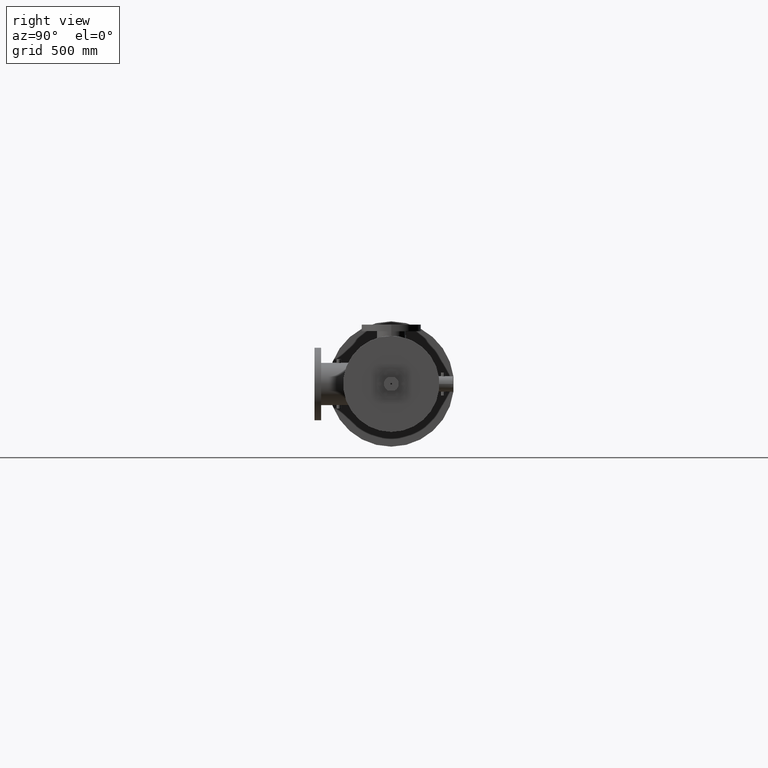
[diagram: clean part render]
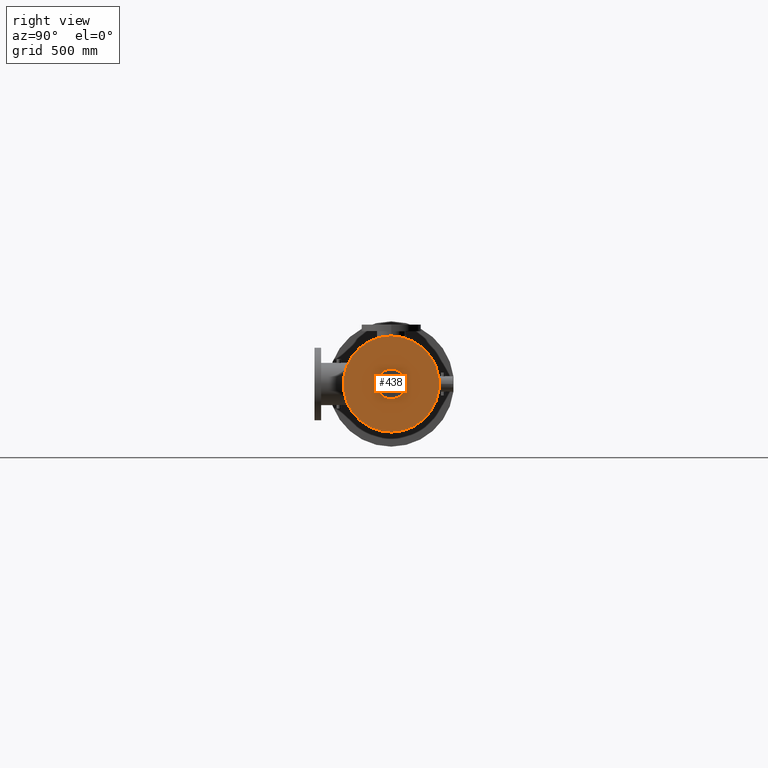
[diagram: same view with one face highlighted and labeled with its STEP entity id]
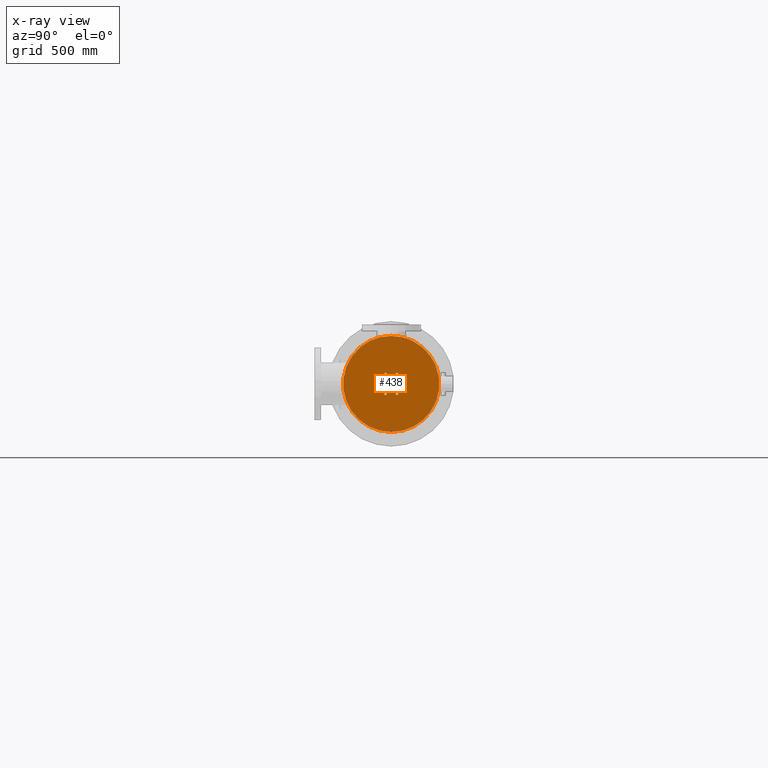
[diagram: x-ray of the same camera — body ghosted, the highlighted face saturated]
A machine part, right view. The second image highlights one B-rep face of the part: STEP entity #438.
The next image is the same camera in x-ray: the body ghosted, the highlighted face saturated — about 1% of this face is hidden behind the body in this view.
In plain terms, the highlighted planar face has unit normal (1, 0, 0).
Its self-contained STEP definition (entity closure, byte-faithful):
#47 = CIRCLE ( 'NONE', #8426, 0.1875000000000210110 ) ;
#196 = CIRCLE ( 'NONE', #9458, 0.1875000000000088540 ) ;
#438 = ADVANCED_FACE ( 'NONE', ( #16094, #16421, #24423, #13964, #19237, #510, #13050, #1415 ), #23721, .T. ) ;
#509 = DIRECTION ( 'NONE',  ( 0.0000000000000000000, 0.0000000000000000000, -1.000000000000000000 ) ) ;
#510 = FACE_BOUND ( 'NONE', #9283, .T. ) ;
#701 = DIRECTION ( 'NONE',  ( 1.000000000000000000, 0.0000000000000000000, 0.0000000000000000000 ) ) ;
#864 = EDGE_CURVE ( 'NONE', #3896, #9776, #7223, .T. ) ;
#1251 = VERTEX_POINT ( 'NONE', #3762 ) ;
#1392 = ORIENTED_EDGE ( 'NONE', *, *, #13090, .F. ) ;
#1415 = FACE_OUTER_BOUND ( 'NONE', #1689, .T. ) ;
#1689 = EDGE_LOOP ( 'NONE', ( #23950, #17147 ) ) ;
#1709 = CIRCLE ( 'NONE', #4219, 7.290535370281114425 ) ;
#1715 = DIRECTION ( 'NONE',  ( 0.0000000000000000000, 0.0000000000000000000, -1.000000000000000000 ) ) ;
#2058 = DIRECTION ( 'NONE',  ( 0.0000000000000000000, 0.0000000000000000000, -1.000000000000000000 ) ) ;
#2161 = AXIS2_PLACEMENT_3D ( 'NONE', #12416, #701, #509 ) ;
#2477 = CARTESIAN_POINT ( 'NONE',  ( 783.2751215751100062, 183.2863553860931631, -1.515544456622830438 ) ) ;
#2566 = DIRECTION ( 'NONE',  ( 1.000000000000000000, 0.0000000000000000000, 0.0000000000000000000 ) ) ;
#2658 = CIRCLE ( 'NONE', #23802, 0.1875000000000210110 ) ;
#2789 = DIRECTION ( 'NONE',  ( 0.0000000000000000000, 0.0000000000000000000, -1.000000000000000000 ) ) ;
#3281 = CARTESIAN_POINT ( 'NONE',  ( 783.2751215751100062, 183.2863553860931347, 1.703044456622716973 ) ) ;
#3339 = CARTESIAN_POINT ( 'NONE',  ( 783.2751215751100062, 183.4082057797939456, 0.0000000000000000000 ) ) ;
#3426 = CIRCLE ( 'NONE', #23493, 0.1875000000000088540 ) ;
#3578 = DIRECTION ( 'NONE',  ( 1.000000000000000000, 0.0000000000000000000, 0.0000000000000000000 ) ) ;
#3738 = DIRECTION ( 'NONE',  ( 1.000000000000000000, 0.0000000000000000000, 0.0000000000000000000 ) ) ;
#3762 = CARTESIAN_POINT ( 'NONE',  ( 783.2751215751100062, 185.0363553860931916, -1.703044456622802238 ) ) ;
#3896 = VERTEX_POINT ( 'NONE', #14686 ) ;
#3950 = CARTESIAN_POINT ( 'NONE',  ( 783.2751215751100062, 182.4113553860931063, -0.1875000000000718869 ) ) ;
#4025 = DIRECTION ( 'NONE',  ( -1.000000000000000000, -0.0000000000000000000, -0.0000000000000000000 ) ) ;
#4219 = AXIS2_PLACEMENT_3D ( 'NONE', #5032, #18775, #18604 ) ;
#4252 = EDGE_LOOP ( 'NONE', ( #16462, #6272 ) ) ;
#4353 = CARTESIAN_POINT ( 'NONE',  ( 783.2751215751100062, 185.0363553860931631, 1.703044456622744063 ) ) ;
#5022 = VERTEX_POINT ( 'NONE', #18683 ) ;
#5032 = CARTESIAN_POINT ( 'NONE',  ( 783.2751215751100062, 184.1613553879231517, 0.0000000000000000000 ) ) ;
#5117 = AXIS2_PLACEMENT_3D ( 'NONE', #23646, #11877, #6066 ) ;
#5478 = CARTESIAN_POINT ( 'NONE',  ( 783.2751215751100062, 184.1613553860931631, 0.0000000000000000000 ) ) ;
#5857 = CARTESIAN_POINT ( 'NONE',  ( 783.2751215751100062, 185.9113553860931916, 0.1875000000000087985 ) ) ;
#5904 = VERTEX_POINT ( 'NONE', #16024 ) ;
#6066 = DIRECTION ( 'NONE',  ( 0.0000000000000000000, 0.0000000000000000000, -1.000000000000000000 ) ) ;
#6084 = VERTEX_POINT ( 'NONE', #3281 ) ;
#6103 = AXIS2_PLACEMENT_3D ( 'NONE', #17701, #3738, #17528 ) ;
#6114 = CIRCLE ( 'NONE', #12889, 0.1875000000000184297 ) ;
#6272 = ORIENTED_EDGE ( 'NONE', *, *, #9268, .F. ) ;
#6290 = DIRECTION ( 'NONE',  ( 0.0000000000000000000, 0.0000000000000000000, -1.000000000000000000 ) ) ;
#6509 = EDGE_CURVE ( 'NONE', #15775, #19167, #1709, .T. ) ;
#6594 = DIRECTION ( 'NONE',  ( 0.0000000000000000000, 0.0000000000000000000, -1.000000000000000000 ) ) ;
#6631 = DIRECTION ( 'NONE',  ( 1.000000000000000000, 0.0000000000000000000, 0.0000000000000000000 ) ) ;
#6751 = EDGE_CURVE ( 'NONE', #24826, #6084, #196, .T. ) ;
#6973 = ORIENTED_EDGE ( 'NONE', *, *, #14377, .F. ) ;
#7023 = EDGE_CURVE ( 'NONE', #24363, #17778, #8117, .T. ) ;
#7223 = CIRCLE ( 'NONE', #6103, 0.1875000000000184297 ) ;
#7467 = DIRECTION ( 'NONE',  ( 0.0000000000000000000, 0.0000000000000000000, -1.000000000000000000 ) ) ;
#7512 = EDGE_LOOP ( 'NONE', ( #11874, #10364 ) ) ;
#7884 = DIRECTION ( 'NONE',  ( 1.000000000000000000, 0.0000000000000000000, 0.0000000000000000000 ) ) ;
#8117 = CIRCLE ( 'NONE', #11120, 0.1875000000000019706 ) ;
#8292 = VERTEX_POINT ( 'NONE', #13999 ) ;
#8350 = AXIS2_PLACEMENT_3D ( 'NONE', #18303, #6631, #2789 ) ;
#8426 = AXIS2_PLACEMENT_3D ( 'NONE', #16345, #22158, #6594 ) ;
#8748 = CARTESIAN_POINT ( 'NONE',  ( 783.2751215751100062, 185.0363553860931916, -1.515544456622812897 ) ) ;
#8856 = EDGE_LOOP ( 'NONE', ( #1392, #18739 ) ) ;
#8865 = CIRCLE ( 'NONE', #2161, 0.1875000000000184297 ) ;
#9268 = EDGE_CURVE ( 'NONE', #5904, #5022, #22809, .T. ) ;
#9283 = EDGE_LOOP ( 'NONE', ( #13518, #11801 ) ) ;
#9458 = AXIS2_PLACEMENT_3D ( 'NONE', #15967, #9887, #6290 ) ;
#9675 = CIRCLE ( 'NONE', #13081, 0.7531496062992163454 ) ;
#9776 = VERTEX_POINT ( 'NONE', #4353 ) ;
#9863 = EDGE_CURVE ( 'NONE', #6084, #24826, #3426, .T. ) ;
#9887 = DIRECTION ( 'NONE',  ( 1.000000000000000000, 0.0000000000000000000, 0.0000000000000000000 ) ) ;
#10364 = ORIENTED_EDGE ( 'NONE', *, *, #16776, .T. ) ;
#10547 = DIRECTION ( 'NONE',  ( 0.0000000000000000000, 0.0000000000000000000, -1.000000000000000000 ) ) ;
#10648 = CARTESIAN_POINT ( 'NONE',  ( 783.2751215751100062, 185.0363553860931916, -1.328044456622823777 ) ) ;
#11120 = AXIS2_PLACEMENT_3D ( 'NONE', #15393, #7884, #1715 ) ;
#11287 = EDGE_CURVE ( 'NONE', #9776, #3896, #8865, .T. ) ;
#11612 = CARTESIAN_POINT ( 'NONE',  ( 783.2751215751100062, 183.2863553860931347, 1.515544456622708092 ) ) ;
#11781 = EDGE_CURVE ( 'NONE', #17778, #24363, #14942, .T. ) ;
#11801 = ORIENTED_EDGE ( 'NONE', *, *, #9863, .F. ) ;
#11874 = ORIENTED_EDGE ( 'NONE', *, *, #25180, .T. ) ;
#11877 = DIRECTION ( 'NONE',  ( 1.000000000000000000, 0.0000000000000000000, 0.0000000000000000000 ) ) ;
#12088 = EDGE_LOOP ( 'NONE', ( #21944, #22071 ) ) ;
#12245 = CARTESIAN_POINT ( 'NONE',  ( 783.2751215751100062, 185.9113553860931916, -1.222018468595105352E-14 ) ) ;
#12416 = CARTESIAN_POINT ( 'NONE',  ( 783.2751215751100062, 185.0363553860931631, 1.515544456622725633 ) ) ;
#12889 = AXIS2_PLACEMENT_3D ( 'NONE', #15952, #14239, #10547 ) ;
#13044 = DIRECTION ( 'NONE',  ( 1.000000000000000000, 0.0000000000000000000, 0.0000000000000000000 ) ) ;
#13050 = FACE_BOUND ( 'NONE', #24434, .T. ) ;
#13081 = AXIS2_PLACEMENT_3D ( 'NONE', #5478, #19222, #7467 ) ;
#13090 = EDGE_CURVE ( 'NONE', #14752, #13421, #47, .T. ) ;
#13421 = VERTEX_POINT ( 'NONE', #5857 ) ;
#13505 = EDGE_CURVE ( 'NONE', #16016, #1251, #22142, .T. ) ;
#13518 = ORIENTED_EDGE ( 'NONE', *, *, #6751, .F. ) ;
#13964 = FACE_BOUND ( 'NONE', #4252, .T. ) ;
#13999 = CARTESIAN_POINT ( 'NONE',  ( 783.2751215751100062, 184.9145049923924091, 9.223422546334033737E-17 ) ) ;
#14239 = DIRECTION ( 'NONE',  ( 1.000000000000000000, 0.0000000000000000000, 0.0000000000000000000 ) ) ;
#14377 = EDGE_CURVE ( 'NONE', #1251, #16016, #16220, .T. ) ;
#14510 = DIRECTION ( 'NONE',  ( -1.000000000000000000, -0.0000000000000000000, -0.0000000000000000000 ) ) ;
#14581 = AXIS2_PLACEMENT_3D ( 'NONE', #23577, #4025, #2058 ) ;
#14673 = CARTESIAN_POINT ( 'NONE',  ( 783.2751215751100062, 184.1613553879231517, 0.0000000000000000000 ) ) ;
#14686 = CARTESIAN_POINT ( 'NONE',  ( 783.2751215751100062, 185.0363553860931631, 1.328044456622707203 ) ) ;
#14752 = VERTEX_POINT ( 'NONE', #15354 ) ;
#14942 = CIRCLE ( 'NONE', #16601, 0.1875000000000019706 ) ;
#15354 = CARTESIAN_POINT ( 'NONE',  ( 783.2751215751100062, 185.9113553860931916, -0.1875000000000332512 ) ) ;
#15393 = CARTESIAN_POINT ( 'NONE',  ( 783.2751215751100062, 182.4113553860931063, -6.993530863780513839E-14 ) ) ;
#15525 = CIRCLE ( 'NONE', #14581, 0.7531496062992163454 ) ;
#15775 = VERTEX_POINT ( 'NONE', #23711 ) ;
#15832 = DIRECTION ( 'NONE',  ( 0.0000000000000000000, 0.0000000000000000000, -1.000000000000000000 ) ) ;
#15952 = CARTESIAN_POINT ( 'NONE',  ( 783.2751215751100062, 183.2863553860931631, -1.515544456622830438 ) ) ;
#15967 = CARTESIAN_POINT ( 'NONE',  ( 783.2751215751100062, 183.2863553860931347, 1.515544456622708092 ) ) ;
#16016 = VERTEX_POINT ( 'NONE', #10648 ) ;
#16024 = CARTESIAN_POINT ( 'NONE',  ( 783.2751215751100062, 183.2863553860931631, -1.328044456622812008 ) ) ;
#16094 = FACE_BOUND ( 'NONE', #7512, .T. ) ;
#16220 = CIRCLE ( 'NONE', #8350, 0.1874999999999892031 ) ;
#16345 = CARTESIAN_POINT ( 'NONE',  ( 783.2751215751100062, 185.9113553860931916, -1.222018468595105352E-14 ) ) ;
#16421 = FACE_BOUND ( 'NONE', #8856, .T. ) ;
#16462 = ORIENTED_EDGE ( 'NONE', *, *, #23376, .F. ) ;
#16601 = AXIS2_PLACEMENT_3D ( 'NONE', #22887, #13044, #15832 ) ;
#16776 = EDGE_CURVE ( 'NONE', #8292, #24723, #15525, .T. ) ;
#16857 = EDGE_CURVE ( 'NONE', #13421, #14752, #2658, .T. ) ;
#17147 = ORIENTED_EDGE ( 'NONE', *, *, #17416, .F. ) ;
#17367 = CARTESIAN_POINT ( 'NONE',  ( 783.2751215751100062, 183.2863553860931347, 1.328044456622699210 ) ) ;
#17416 = EDGE_CURVE ( 'NONE', #19167, #15775, #21997, .T. ) ;
#17528 = DIRECTION ( 'NONE',  ( 0.0000000000000000000, 0.0000000000000000000, -1.000000000000000000 ) ) ;
#17701 = CARTESIAN_POINT ( 'NONE',  ( 783.2751215751100062, 185.0363553860931631, 1.515544456622725633 ) ) ;
#17778 = VERTEX_POINT ( 'NONE', #22063 ) ;
#18174 = DIRECTION ( 'NONE',  ( 0.0000000000000000000, 0.0000000000000000000, -1.000000000000000000 ) ) ;
#18303 = CARTESIAN_POINT ( 'NONE',  ( 783.2751215751100062, 185.0363553860931916, -1.515544456622812897 ) ) ;
#18371 = DIRECTION ( 'NONE',  ( 1.000000000000000000, 0.0000000000000000000, 0.0000000000000000000 ) ) ;
#18604 = DIRECTION ( 'NONE',  ( 0.0000000000000000000, 0.0000000000000000000, 1.000000000000000000 ) ) ;
#18683 = CARTESIAN_POINT ( 'NONE',  ( 783.2751215751100062, 183.2863553860931631, -1.703044456622848868 ) ) ;
#18739 = ORIENTED_EDGE ( 'NONE', *, *, #16857, .F. ) ;
#18775 = DIRECTION ( 'NONE',  ( -1.000000000000000000, -0.0000000000000000000, -0.0000000000000000000 ) ) ;
#18941 = ORIENTED_EDGE ( 'NONE', *, *, #11287, .F. ) ;
#19167 = VERTEX_POINT ( 'NONE', #23414 ) ;
#19222 = DIRECTION ( 'NONE',  ( -1.000000000000000000, -0.0000000000000000000, -0.0000000000000000000 ) ) ;
#19237 = FACE_BOUND ( 'NONE', #12088, .T. ) ;
#20250 = DIRECTION ( 'NONE',  ( 1.000000000000000000, 0.0000000000000000000, 0.0000000000000000000 ) ) ;
#20433 = DIRECTION ( 'NONE',  ( 0.0000000000000000000, 0.0000000000000000000, -1.000000000000000000 ) ) ;
#20712 = ORIENTED_EDGE ( 'NONE', *, *, #13505, .F. ) ;
#20726 = DIRECTION ( 'NONE',  ( 0.0000000000000000000, 0.0000000000000000000, 1.000000000000000000 ) ) ;
#21531 = DIRECTION ( 'NONE',  ( 0.0000000000000000000, 0.0000000000000000000, -1.000000000000000000 ) ) ;
#21615 = AXIS2_PLACEMENT_3D ( 'NONE', #8748, #18371, #20433 ) ;
#21897 = AXIS2_PLACEMENT_3D ( 'NONE', #14673, #14510, #20726 ) ;
#21944 = ORIENTED_EDGE ( 'NONE', *, *, #7023, .F. ) ;
#21997 = CIRCLE ( 'NONE', #21897, 7.290535370281114425 ) ;
#22063 = CARTESIAN_POINT ( 'NONE',  ( 783.2751215751100062, 182.4113553860931063, 0.1874999999999320266 ) ) ;
#22071 = ORIENTED_EDGE ( 'NONE', *, *, #11781, .F. ) ;
#22137 = EDGE_LOOP ( 'NONE', ( #6973, #20712 ) ) ;
#22142 = CIRCLE ( 'NONE', #21615, 0.1874999999999892031 ) ;
#22158 = DIRECTION ( 'NONE',  ( 1.000000000000000000, 0.0000000000000000000, 0.0000000000000000000 ) ) ;
#22229 = ORIENTED_EDGE ( 'NONE', *, *, #864, .F. ) ;
#22809 = CIRCLE ( 'NONE', #25276, 0.1875000000000184297 ) ;
#22887 = CARTESIAN_POINT ( 'NONE',  ( 783.2751215751100062, 182.4113553860931063, -6.993530863780513839E-14 ) ) ;
#23376 = EDGE_CURVE ( 'NONE', #5022, #5904, #6114, .T. ) ;
#23414 = CARTESIAN_POINT ( 'NONE',  ( 783.2751215751100062, 184.1613553879231517, -7.290535370281114425 ) ) ;
#23493 = AXIS2_PLACEMENT_3D ( 'NONE', #11612, #3578, #21531 ) ;
#23577 = CARTESIAN_POINT ( 'NONE',  ( 783.2751215751100062, 184.1613553860931631, 0.0000000000000000000 ) ) ;
#23646 = CARTESIAN_POINT ( 'NONE',  ( 783.2751215751100062, 0.0000000000000000000, 0.0000000000000000000 ) ) ;
#23711 = CARTESIAN_POINT ( 'NONE',  ( 783.2751215751100062, 184.1613553879231517, 7.290535370281114425 ) ) ;
#23721 = PLANE ( 'NONE',  #5117 ) ;
#23802 = AXIS2_PLACEMENT_3D ( 'NONE', #12245, #20250, #18174 ) ;
#23950 = ORIENTED_EDGE ( 'NONE', *, *, #6509, .F. ) ;
#24363 = VERTEX_POINT ( 'NONE', #3950 ) ;
#24423 = FACE_BOUND ( 'NONE', #22137, .T. ) ;
#24434 = EDGE_LOOP ( 'NONE', ( #22229, #18941 ) ) ;
#24723 = VERTEX_POINT ( 'NONE', #3339 ) ;
#24826 = VERTEX_POINT ( 'NONE', #17367 ) ;
#25180 = EDGE_CURVE ( 'NONE', #24723, #8292, #9675, .T. ) ;
#25276 = AXIS2_PLACEMENT_3D ( 'NONE', #2477, #2566, #25433 ) ;
#25433 = DIRECTION ( 'NONE',  ( 0.0000000000000000000, 0.0000000000000000000, -1.000000000000000000 ) ) ;